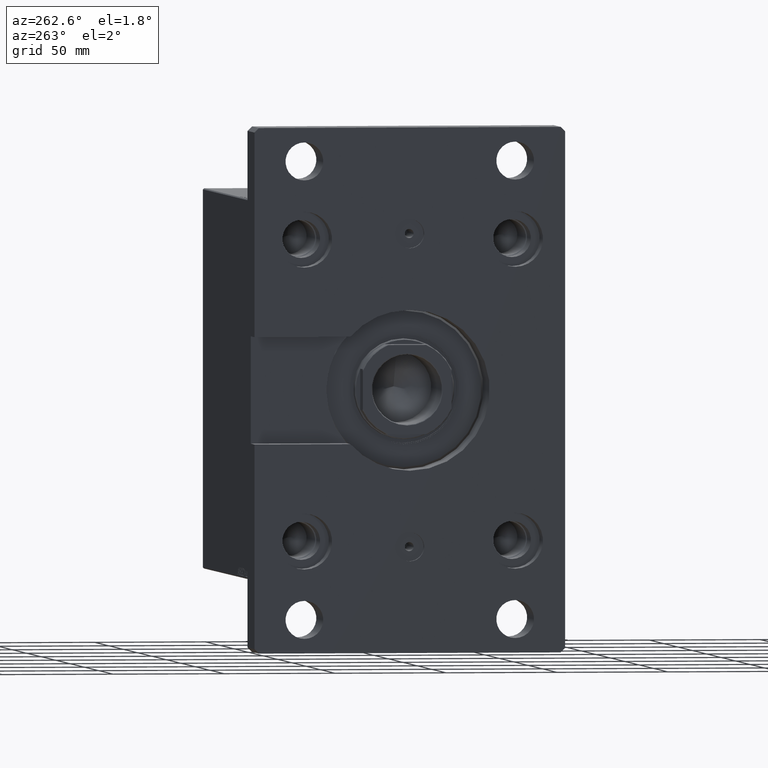
[diagram: clean part render]
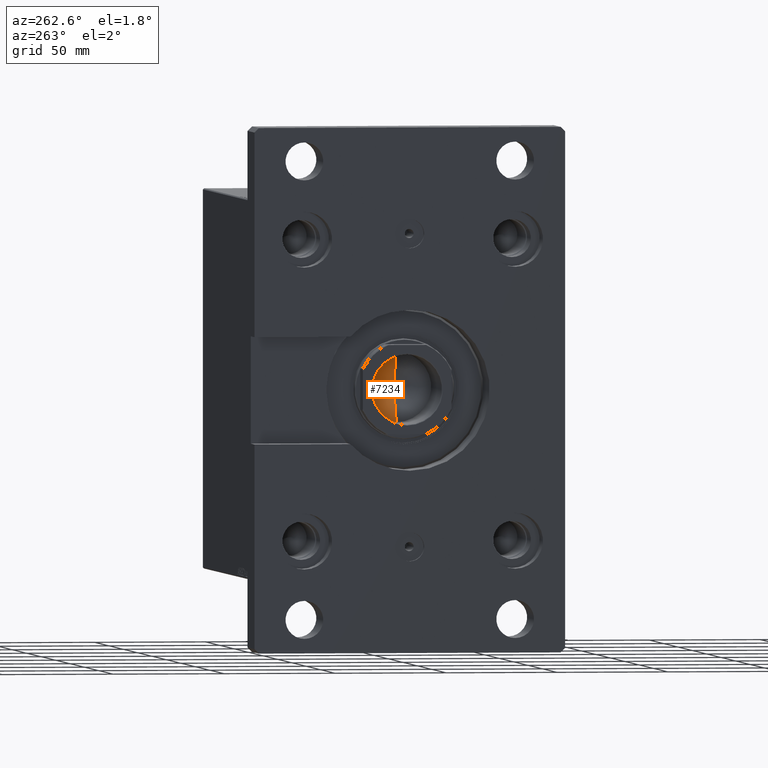
[diagram: same view with one face highlighted and labeled with its STEP entity id]
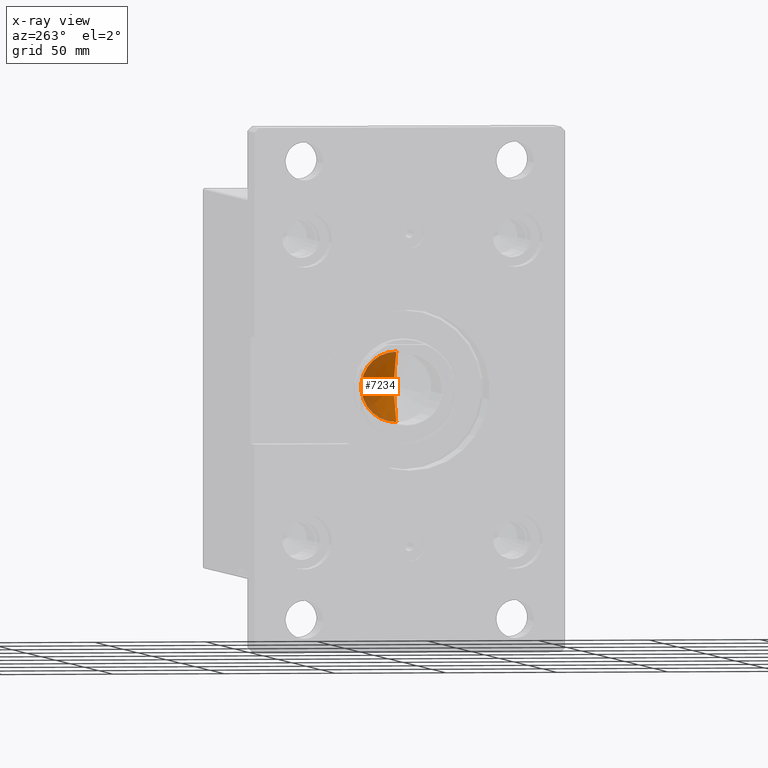
[diagram: x-ray of the same camera — body ghosted, the highlighted face saturated]
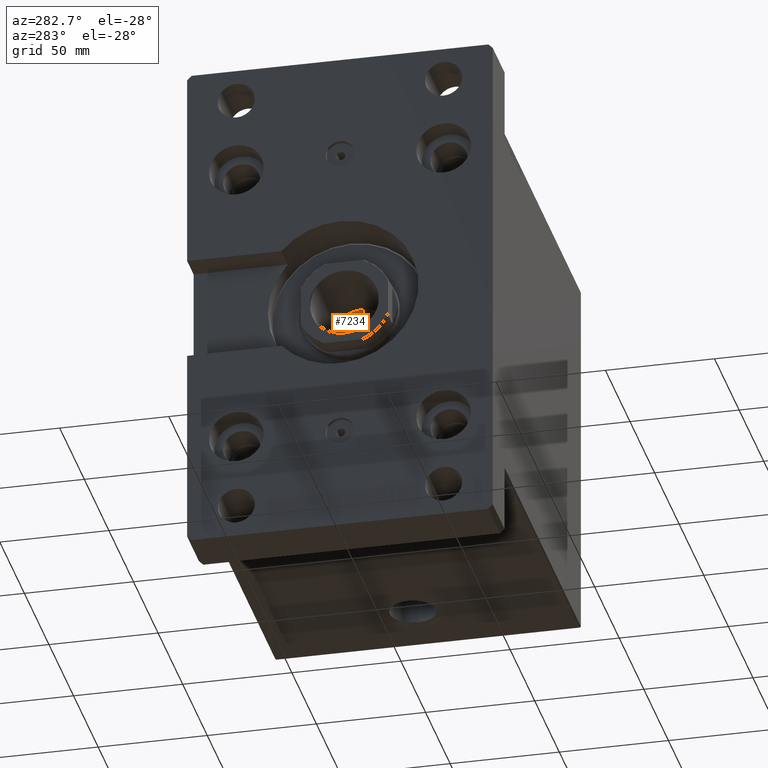
[diagram: same view with one face highlighted and labeled with its STEP entity id]
A machine part, auxiliary view. The second image highlights one B-rep face of the part: STEP entity #7234.
The next image is the same camera in x-ray: the body ghosted, the highlighted face saturated — about 41% of this face is hidden behind the body in this view.
A second angle (auxiliary view) of the same face is appended — the face is thin or edge-on in the first view.
In plain terms, the highlighted conical surface has half-angle 59 deg.
Its self-contained STEP definition (entity closure, byte-faithful):
#199 = VERTEX_POINT ( 'NONE', #24538 ) ;
#850 = FACE_OUTER_BOUND ( 'NONE', #13566, .T. ) ;
#4256 = CIRCLE ( 'NONE', #21144, 15.74999999999999289 ) ;
#4625 = CARTESIAN_POINT ( 'NONE',  ( -1.199718644317817648E-14, 0.000000000000000000, 96.53644525031593560 ) ) ;
#5730 = ORIENTED_EDGE ( 'NONE', *, *, #37557, .T. ) ;
#5798 = EDGE_CURVE ( 'NONE', #36786, #199, #27147, .T. ) ;
#7200 = EDGE_CURVE ( 'NONE', #36786, #17714, #11890, .T. ) ;
#7234 = ADVANCED_FACE ( 'NONE', ( #850 ), #39552, .F. ) ;
#8888 = DIRECTION ( 'NONE',  ( 0.8571673007021120005, 0.000000000000000000, 0.5150380749100547106 ) ) ;
#11175 = CARTESIAN_POINT ( 'NONE',  ( -15.74999999999999289, 1.928818708657080556E-15, 106.0000000000000142 ) ) ;
#11890 = LINE ( 'NONE', #11175, #33392 ) ;
#13566 = EDGE_LOOP ( 'NONE', ( #19940, #17358, #5730 ) ) ;
#14789 = DIRECTION ( 'NONE',  ( -0.8571673007021120005, 1.049727191138618326E-16, 0.5150380749100547106 ) ) ;
#14971 = DIRECTION ( 'NONE',  ( -0.000000000000000000, -0.000000000000000000, 1.000000000000000000 ) ) ;
#17358 = ORIENTED_EDGE ( 'NONE', *, *, #5798, .T. ) ;
#17714 = VERTEX_POINT ( 'NONE', #21318 ) ;
#18800 = VECTOR ( 'NONE', #8888, 1000.000000000000000 ) ;
#18867 = DIRECTION ( 'NONE',  ( 1.000000000000000000, 0.000000000000000000, 0.000000000000000000 ) ) ;
#19940 = ORIENTED_EDGE ( 'NONE', *, *, #7200, .F. ) ;
#21144 = AXIS2_PLACEMENT_3D ( 'NONE', #29873, #14971, #45002 ) ;
#21318 = CARTESIAN_POINT ( 'NONE',  ( -15.74999999999999289, 1.928818708657080556E-15, 106.0000000000000142 ) ) ;
#24538 = CARTESIAN_POINT ( 'NONE',  ( 15.74999999999999289, 0.000000000000000000, 106.0000000000000142 ) ) ;
#25845 = DIRECTION ( 'NONE',  ( -0.000000000000000000, -0.000000000000000000, 1.000000000000000000 ) ) ;
#27147 = LINE ( 'NONE', #42268, #18800 ) ;
#29873 = CARTESIAN_POINT ( 'NONE',  ( 0.000000000000000000, 0.000000000000000000, 106.0000000000000142 ) ) ;
#33392 = VECTOR ( 'NONE', #14789, 1000.000000000000000 ) ;
#36786 = VERTEX_POINT ( 'NONE', #4625 ) ;
#37361 = CARTESIAN_POINT ( 'NONE',  ( 0.000000000000000000, 0.000000000000000000, 106.0000000000000142 ) ) ;
#37557 = EDGE_CURVE ( 'NONE', #199, #17714, #4256, .T. ) ;
#39552 = CONICAL_SURFACE ( 'NONE', #44936, 15.74999999999999289, 1.029744258676653867 ) ;
#42268 = CARTESIAN_POINT ( 'NONE',  ( 15.74999999999999289, 0.000000000000000000, 106.0000000000000142 ) ) ;
#44936 = AXIS2_PLACEMENT_3D ( 'NONE', #37361, #25845, #18867 ) ;
#45002 = DIRECTION ( 'NONE',  ( 1.000000000000000000, 0.000000000000000000, 0.000000000000000000 ) ) ;